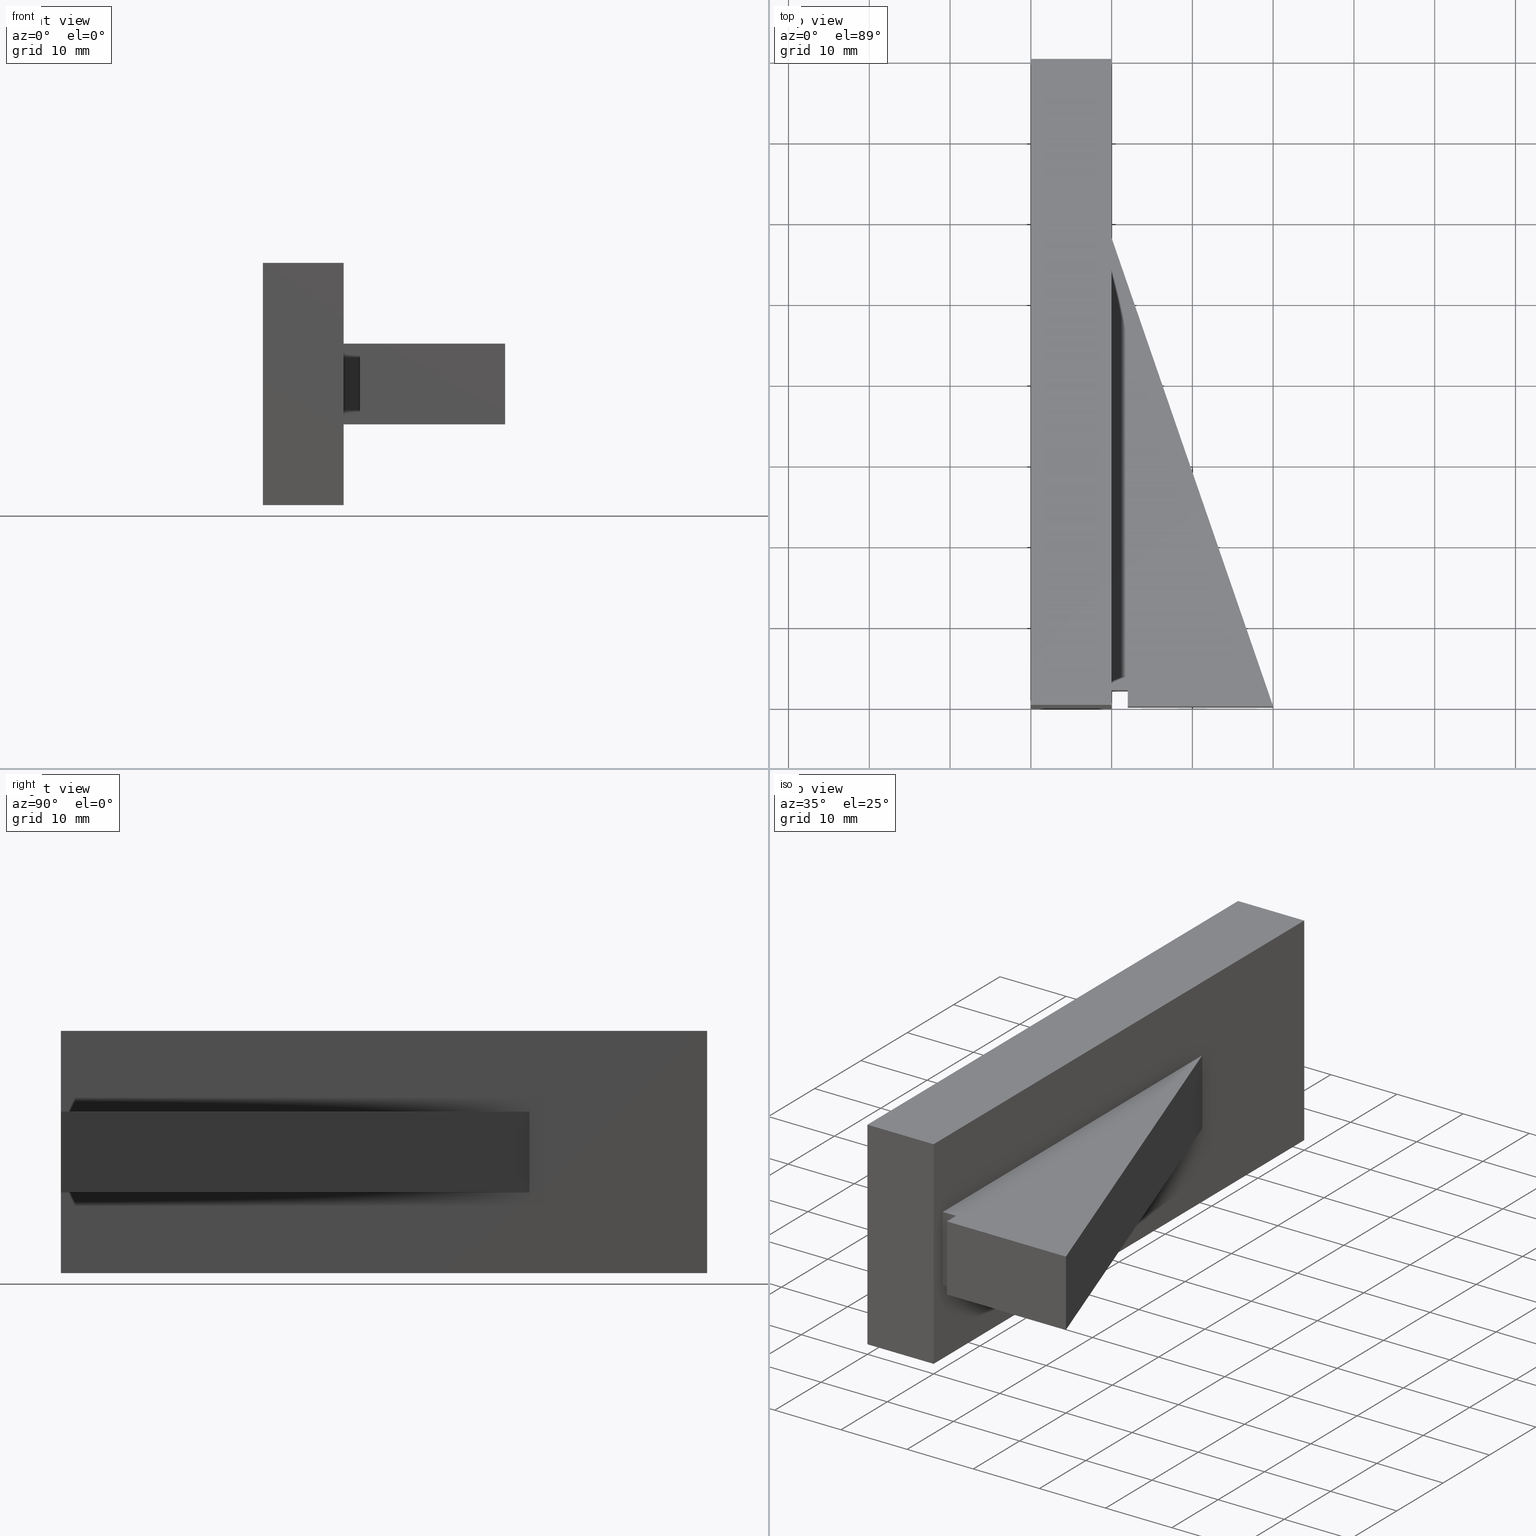
[diagram: canonical four-view strip — front | top / right | iso, engineering-drawing reading convention]
A machine part, canonical four-view strip (front | top / right | iso — engineering-drawing reading convention). The complete STEP part file that produces these views, byte-faithful:
ISO-10303-21;
HEADER;
/* Generated by software containing ST-Developer
 * from STEP Tools, Inc. (www.steptools.com) 
 */

FILE_DESCRIPTION(
/* description */ (''),
/* implementation_level */ '2;1');

FILE_NAME(
/* name */ 'E_3_01_06_08_00_WKZ-0148.stp',
/* time_stamp */ '2025-11-24T11:57:29+01:00',
/* author */ ('d.fischer'),
/* organization */ (''),
/* preprocessor_version */ 'ST-DEVELOPER v20',
/* originating_system */ 'Autodesk Inventor 2025',
/* authorisation */ '');

FILE_SCHEMA (('AUTOMOTIVE_DESIGN { 1 0 10303 214 3 1 1 }'));
ENDSEC;

DATA;
#10=MECHANICAL_DESIGN_GEOMETRIC_PRESENTATION_REPRESENTATION('',(#14,#15),
#368);
#11=SHAPE_REPRESENTATION_RELATIONSHIP('SRR','None',#375,#12);
#12=ADVANCED_BREP_SHAPE_REPRESENTATION('',(#13),#367);
#13=MANIFOLD_SOLID_BREP('Volumenk\X\F6rper1',#219);
#14=STYLED_ITEM('',(#385),#211);
#15=STYLED_ITEM('',(#384),#13);
#16=FACE_BOUND('',#30,.T.);
#17=FACE_OUTER_BOUND('',#29,.T.);
#18=FACE_OUTER_BOUND('',#31,.T.);
#19=FACE_OUTER_BOUND('',#32,.T.);
#20=FACE_OUTER_BOUND('',#33,.T.);
#21=FACE_OUTER_BOUND('',#34,.T.);
#22=FACE_OUTER_BOUND('',#35,.T.);
#23=FACE_OUTER_BOUND('',#36,.T.);
#24=FACE_OUTER_BOUND('',#37,.T.);
#25=FACE_OUTER_BOUND('',#38,.T.);
#26=FACE_OUTER_BOUND('',#39,.T.);
#27=FACE_OUTER_BOUND('',#40,.T.);
#28=FACE_OUTER_BOUND('',#41,.T.);
#29=EDGE_LOOP('',(#141,#142,#143,#144));
#30=EDGE_LOOP('',(#145,#146,#147,#148));
#31=EDGE_LOOP('',(#149,#150,#151,#152));
#32=EDGE_LOOP('',(#153,#154,#155,#156));
#33=EDGE_LOOP('',(#157,#158,#159,#160));
#34=EDGE_LOOP('',(#161,#162,#163,#164));
#35=EDGE_LOOP('',(#165,#166,#167,#168));
#36=EDGE_LOOP('',(#169,#170,#171,#172,#173));
#37=EDGE_LOOP('',(#174,#175,#176,#177));
#38=EDGE_LOOP('',(#178,#179,#180,#181));
#39=EDGE_LOOP('',(#182,#183,#184,#185));
#40=EDGE_LOOP('',(#186,#187,#188,#189));
#41=EDGE_LOOP('',(#190,#191,#192,#193,#194));
#42=LINE('',#311,#69);
#43=LINE('',#313,#70);
#44=LINE('',#315,#71);
#45=LINE('',#316,#72);
#46=LINE('',#319,#73);
#47=LINE('',#321,#74);
#48=LINE('',#323,#75);
#49=LINE('',#324,#76);
#50=LINE('',#328,#77);
#51=LINE('',#329,#78);
#52=LINE('',#330,#79);
#53=LINE('',#333,#80);
#54=LINE('',#334,#81);
#55=LINE('',#337,#82);
#56=LINE('',#338,#83);
#57=LINE('',#340,#84);
#58=LINE('',#344,#85);
#59=LINE('',#346,#86);
#60=LINE('',#348,#87);
#61=LINE('',#349,#88);
#62=LINE('',#353,#89);
#63=LINE('',#354,#90);
#64=LINE('',#355,#91);
#65=LINE('',#357,#92);
#66=LINE('',#360,#93);
#67=LINE('',#361,#94);
#68=LINE('',#363,#95);
#69=VECTOR('',#258,10.);
#70=VECTOR('',#259,10.);
#71=VECTOR('',#260,10.);
#72=VECTOR('',#261,10.);
#73=VECTOR('',#262,10.);
#74=VECTOR('',#263,10.);
#75=VECTOR('',#264,10.);
#76=VECTOR('',#265,10.);
#77=VECTOR('',#268,10.);
#78=VECTOR('',#269,10.);
#79=VECTOR('',#270,10.);
#80=VECTOR('',#273,10.);
#81=VECTOR('',#274,10.);
#82=VECTOR('',#277,10.);
#83=VECTOR('',#278,10.);
#84=VECTOR('',#281,10.);
#85=VECTOR('',#286,10.);
#86=VECTOR('',#287,10.);
#87=VECTOR('',#288,10.);
#88=VECTOR('',#289,10.);
#89=VECTOR('',#292,10.);
#90=VECTOR('',#293,10.);
#91=VECTOR('',#294,10.);
#92=VECTOR('',#297,10.);
#93=VECTOR('',#300,10.);
#94=VECTOR('',#301,10.);
#95=VECTOR('',#304,10.);
#96=VERTEX_POINT('',#309);
#97=VERTEX_POINT('',#310);
#98=VERTEX_POINT('',#312);
#99=VERTEX_POINT('',#314);
#100=VERTEX_POINT('',#317);
#101=VERTEX_POINT('',#318);
#102=VERTEX_POINT('',#320);
#103=VERTEX_POINT('',#322);
#104=VERTEX_POINT('',#326);
#105=VERTEX_POINT('',#327);
#106=VERTEX_POINT('',#332);
#107=VERTEX_POINT('',#336);
#108=VERTEX_POINT('',#343);
#109=VERTEX_POINT('',#345);
#110=VERTEX_POINT('',#347);
#111=VERTEX_POINT('',#351);
#112=VERTEX_POINT('',#352);
#113=VERTEX_POINT('',#359);
#114=EDGE_CURVE('',#96,#97,#42,.T.);
#115=EDGE_CURVE('',#98,#96,#43,.T.);
#116=EDGE_CURVE('',#99,#98,#44,.T.);
#117=EDGE_CURVE('',#97,#99,#45,.T.);
#118=EDGE_CURVE('',#100,#101,#46,.T.);
#119=EDGE_CURVE('',#102,#101,#47,.T.);
#120=EDGE_CURVE('',#102,#103,#48,.T.);
#121=EDGE_CURVE('',#103,#100,#49,.T.);
#122=EDGE_CURVE('',#104,#105,#50,.T.);
#123=EDGE_CURVE('',#98,#105,#51,.T.);
#124=EDGE_CURVE('',#96,#104,#52,.T.);
#125=EDGE_CURVE('',#105,#106,#53,.T.);
#126=EDGE_CURVE('',#99,#106,#54,.T.);
#127=EDGE_CURVE('',#106,#107,#55,.T.);
#128=EDGE_CURVE('',#97,#107,#56,.T.);
#129=EDGE_CURVE('',#107,#104,#57,.T.);
#130=EDGE_CURVE('',#108,#100,#58,.T.);
#131=EDGE_CURVE('',#109,#108,#59,.T.);
#132=EDGE_CURVE('',#110,#109,#60,.T.);
#133=EDGE_CURVE('',#101,#110,#61,.T.);
#134=EDGE_CURVE('',#111,#112,#62,.T.);
#135=EDGE_CURVE('',#112,#110,#63,.T.);
#136=EDGE_CURVE('',#111,#109,#64,.T.);
#137=EDGE_CURVE('',#112,#102,#65,.T.);
#138=EDGE_CURVE('',#103,#113,#66,.T.);
#139=EDGE_CURVE('',#108,#113,#67,.T.);
#140=EDGE_CURVE('',#113,#111,#68,.T.);
#141=ORIENTED_EDGE('',*,*,#114,.F.);
#142=ORIENTED_EDGE('',*,*,#115,.F.);
#143=ORIENTED_EDGE('',*,*,#116,.F.);
#144=ORIENTED_EDGE('',*,*,#117,.F.);
#145=ORIENTED_EDGE('',*,*,#118,.T.);
#146=ORIENTED_EDGE('',*,*,#119,.F.);
#147=ORIENTED_EDGE('',*,*,#120,.T.);
#148=ORIENTED_EDGE('',*,*,#121,.T.);
#149=ORIENTED_EDGE('',*,*,#122,.T.);
#150=ORIENTED_EDGE('',*,*,#123,.F.);
#151=ORIENTED_EDGE('',*,*,#115,.T.);
#152=ORIENTED_EDGE('',*,*,#124,.T.);
#153=ORIENTED_EDGE('',*,*,#125,.T.);
#154=ORIENTED_EDGE('',*,*,#126,.F.);
#155=ORIENTED_EDGE('',*,*,#116,.T.);
#156=ORIENTED_EDGE('',*,*,#123,.T.);
#157=ORIENTED_EDGE('',*,*,#127,.T.);
#158=ORIENTED_EDGE('',*,*,#128,.F.);
#159=ORIENTED_EDGE('',*,*,#117,.T.);
#160=ORIENTED_EDGE('',*,*,#126,.T.);
#161=ORIENTED_EDGE('',*,*,#129,.T.);
#162=ORIENTED_EDGE('',*,*,#124,.F.);
#163=ORIENTED_EDGE('',*,*,#114,.T.);
#164=ORIENTED_EDGE('',*,*,#128,.T.);
#165=ORIENTED_EDGE('',*,*,#122,.F.);
#166=ORIENTED_EDGE('',*,*,#129,.F.);
#167=ORIENTED_EDGE('',*,*,#127,.F.);
#168=ORIENTED_EDGE('',*,*,#125,.F.);
#169=ORIENTED_EDGE('',*,*,#130,.F.);
#170=ORIENTED_EDGE('',*,*,#131,.F.);
#171=ORIENTED_EDGE('',*,*,#132,.F.);
#172=ORIENTED_EDGE('',*,*,#133,.F.);
#173=ORIENTED_EDGE('',*,*,#118,.F.);
#174=ORIENTED_EDGE('',*,*,#134,.T.);
#175=ORIENTED_EDGE('',*,*,#135,.T.);
#176=ORIENTED_EDGE('',*,*,#132,.T.);
#177=ORIENTED_EDGE('',*,*,#136,.F.);
#178=ORIENTED_EDGE('',*,*,#137,.T.);
#179=ORIENTED_EDGE('',*,*,#119,.T.);
#180=ORIENTED_EDGE('',*,*,#133,.T.);
#181=ORIENTED_EDGE('',*,*,#135,.F.);
#182=ORIENTED_EDGE('',*,*,#138,.T.);
#183=ORIENTED_EDGE('',*,*,#139,.F.);
#184=ORIENTED_EDGE('',*,*,#130,.T.);
#185=ORIENTED_EDGE('',*,*,#121,.F.);
#186=ORIENTED_EDGE('',*,*,#140,.T.);
#187=ORIENTED_EDGE('',*,*,#136,.T.);
#188=ORIENTED_EDGE('',*,*,#131,.T.);
#189=ORIENTED_EDGE('',*,*,#139,.T.);
#190=ORIENTED_EDGE('',*,*,#134,.F.);
#191=ORIENTED_EDGE('',*,*,#140,.F.);
#192=ORIENTED_EDGE('',*,*,#138,.F.);
#193=ORIENTED_EDGE('',*,*,#120,.F.);
#194=ORIENTED_EDGE('',*,*,#137,.F.);
#195=PLANE('',#242);
#196=PLANE('',#243);
#197=PLANE('',#244);
#198=PLANE('',#245);
#199=PLANE('',#246);
#200=PLANE('',#247);
#201=PLANE('',#248);
#202=PLANE('',#249);
#203=PLANE('',#250);
#204=PLANE('',#251);
#205=PLANE('',#252);
#206=PLANE('',#253);
#207=ADVANCED_FACE('',(#17,#16),#195,.T.);
#208=ADVANCED_FACE('',(#18),#196,.T.);
#209=ADVANCED_FACE('',(#19),#197,.T.);
#210=ADVANCED_FACE('',(#20),#198,.T.);
#211=ADVANCED_FACE('',(#21),#199,.T.);
#212=ADVANCED_FACE('',(#22),#200,.F.);
#213=ADVANCED_FACE('',(#23),#201,.F.);
#214=ADVANCED_FACE('',(#24),#202,.T.);
#215=ADVANCED_FACE('',(#25),#203,.T.);
#216=ADVANCED_FACE('',(#26),#204,.T.);
#217=ADVANCED_FACE('',(#27),#205,.T.);
#218=ADVANCED_FACE('',(#28),#206,.T.);
#219=CLOSED_SHELL('',(#207,#208,#209,#210,#211,#212,#213,#214,#215,#216,
#217,#218));
#220=DERIVED_UNIT_ELEMENT(#223,1.);
#221=DERIVED_UNIT_ELEMENT(#370,-3.);
#222=DIMENSIONAL_EXPONENTS(0.,1.,0.,0.,0.,0.,0.);
#223=(
CONVERSION_BASED_UNIT('gram',#225)
MASS_UNIT()
NAMED_UNIT(#222)
);
#224=(
MASS_UNIT()
NAMED_UNIT(*)
SI_UNIT(.KILO.,.GRAM.)
);
#225=MASS_MEASURE_WITH_UNIT(MASS_MEASURE(0.001),#224);
#226=DERIVED_UNIT((#220,#221));
#227=MEASURE_REPRESENTATION_ITEM('density measure',
POSITIVE_RATIO_MEASURE(8.03),#226);
#228=PROPERTY_DEFINITION_REPRESENTATION(#233,#230);
#229=PROPERTY_DEFINITION_REPRESENTATION(#234,#231);
#230=REPRESENTATION('material name',(#232),#367);
#231=REPRESENTATION('density',(#227),#367);
#232=DESCRIPTIVE_REPRESENTATION_ITEM('1.4301','1.4301');
#233=PROPERTY_DEFINITION('material property','material name',#377);
#234=PROPERTY_DEFINITION('material property','density of part',#377);
#235=DATE_TIME_ROLE('creation_date');
#236=APPLIED_DATE_AND_TIME_ASSIGNMENT(#237,#235,(#377));
#237=DATE_AND_TIME(#238,#239);
#238=CALENDAR_DATE(2011,18,10);
#239=LOCAL_TIME(0,0,0.,#240);
#240=COORDINATED_UNIVERSAL_TIME_OFFSET(0,0,.BEHIND.);
#241=AXIS2_PLACEMENT_3D('',#307,#254,#255);
#242=AXIS2_PLACEMENT_3D('',#308,#256,#257);
#243=AXIS2_PLACEMENT_3D('',#325,#266,#267);
#244=AXIS2_PLACEMENT_3D('',#331,#271,#272);
#245=AXIS2_PLACEMENT_3D('',#335,#275,#276);
#246=AXIS2_PLACEMENT_3D('',#339,#279,#280);
#247=AXIS2_PLACEMENT_3D('',#341,#282,#283);
#248=AXIS2_PLACEMENT_3D('',#342,#284,#285);
#249=AXIS2_PLACEMENT_3D('',#350,#290,#291);
#250=AXIS2_PLACEMENT_3D('',#356,#295,#296);
#251=AXIS2_PLACEMENT_3D('',#358,#298,#299);
#252=AXIS2_PLACEMENT_3D('',#362,#302,#303);
#253=AXIS2_PLACEMENT_3D('',#364,#305,#306);
#254=DIRECTION('axis',(0.,0.,1.));
#255=DIRECTION('refdir',(1.,0.,0.));
#256=DIRECTION('center_axis',(1.,2.48971655895418E-16,-1.10469952699022E-17));
#257=DIRECTION('ref_axis',(-1.10469952699022E-17,0.,-1.));
#258=DIRECTION('',(0.,0.,1.));
#259=DIRECTION('',(2.37904933848248E-16,-1.,2.77555756156289E-16));
#260=DIRECTION('',(1.40868018789466E-31,-5.9211894646675E-16,-1.));
#261=DIRECTION('',(-2.37904933848248E-16,1.,2.77555756156289E-16));
#262=DIRECTION('',(2.37904933848248E-16,-1.,0.));
#263=DIRECTION('',(0.,0.,-1.));
#264=DIRECTION('',(-2.37904933848248E-16,1.,0.));
#265=DIRECTION('',(0.,0.,-1.));
#266=DIRECTION('center_axis',(6.60318838075624E-32,-2.77555756156289E-16,
-1.));
#267=DIRECTION('ref_axis',(-1.,0.,-6.60318838075624E-32));
#268=DIRECTION('',(-2.37904933848248E-16,1.,-2.77555756156289E-16));
#269=DIRECTION('',(-1.,-2.37904933848248E-16,0.));
#270=DIRECTION('',(-1.,-2.37904933848248E-16,0.));
#271=DIRECTION('center_axis',(-2.37904933848248E-16,1.,-5.9211894646675E-16));
#272=DIRECTION('ref_axis',(0.,5.9211894646675E-16,1.));
#273=DIRECTION('',(-1.40868018789466E-31,5.9211894646675E-16,1.));
#274=DIRECTION('',(-1.,-2.37904933848248E-16,0.));
#275=DIRECTION('center_axis',(6.60318838075624E-32,-2.77555756156289E-16,
1.));
#276=DIRECTION('ref_axis',(1.,0.,-6.60318838075624E-32));
#277=DIRECTION('',(2.37904933848248E-16,-1.,-2.77555756156289E-16));
#278=DIRECTION('',(-1.,-2.37904933848248E-16,0.));
#279=DIRECTION('center_axis',(2.37904933848248E-16,-1.,0.));
#280=DIRECTION('ref_axis',(0.,0.,-1.));
#281=DIRECTION('',(0.,0.,-1.));
#282=DIRECTION('center_axis',(1.,2.48971655895418E-16,-1.10469952699022E-17));
#283=DIRECTION('ref_axis',(-1.10469952699022E-17,0.,-1.));
#284=DIRECTION('center_axis',(0.,0.,1.));
#285=DIRECTION('ref_axis',(1.,0.,0.));
#286=DIRECTION('',(-0.325990683319404,0.945372981626272,0.));
#287=DIRECTION('',(1.,3.46944695195361E-17,0.));
#288=DIRECTION('',(-1.11022302462516E-15,-1.,0.));
#289=DIRECTION('',(1.,2.77555756156289E-16,0.));
#290=DIRECTION('center_axis',(-1.,1.11022302462516E-15,0.));
#291=DIRECTION('ref_axis',(0.,0.,1.));
#292=DIRECTION('',(1.11022302462516E-15,1.,0.));
#293=DIRECTION('',(0.,0.,-1.));
#294=DIRECTION('',(0.,0.,-1.));
#295=DIRECTION('center_axis',(2.77555756156289E-16,-1.,0.));
#296=DIRECTION('ref_axis',(0.,0.,-1.));
#297=DIRECTION('',(-1.,-2.77555756156289E-16,0.));
#298=DIRECTION('center_axis',(0.945372981626272,0.325990683319404,0.));
#299=DIRECTION('ref_axis',(0.,0.,-1.));
#300=DIRECTION('',(0.325990683319404,-0.945372981626272,0.));
#301=DIRECTION('',(0.,0.,1.));
#302=DIRECTION('center_axis',(3.46944695195361E-17,-1.,0.));
#303=DIRECTION('ref_axis',(0.,0.,-1.));
#304=DIRECTION('',(-1.,-3.46944695195361E-17,0.));
#305=DIRECTION('center_axis',(0.,0.,1.));
#306=DIRECTION('ref_axis',(1.,0.,0.));
#307=CARTESIAN_POINT('',(0.,0.,0.));
#308=CARTESIAN_POINT('Origin',(-20.,40.,2.22044604925031E-15));
#309=CARTESIAN_POINT('',(-20.,-2.77555756156289E-15,-15.));
#310=CARTESIAN_POINT('',(-20.,-2.77555756156289E-15,15.));
#311=CARTESIAN_POINT('',(-20.,-2.77555756156289E-15,-15.));
#312=CARTESIAN_POINT('',(-20.,80.,-15.));
#313=CARTESIAN_POINT('',(-20.,80.,-15.));
#314=CARTESIAN_POINT('',(-20.,80.,15.));
#315=CARTESIAN_POINT('',(-20.,80.,15.));
#316=CARTESIAN_POINT('',(-20.,-2.77555756156289E-15,15.));
#317=CARTESIAN_POINT('',(-20.,58.,-5.));
#318=CARTESIAN_POINT('',(-20.,2.,-5.));
#319=CARTESIAN_POINT('',(-20.,2.,-5.));
#320=CARTESIAN_POINT('',(-20.,2.,5.));
#321=CARTESIAN_POINT('',(-20.,2.,0.));
#322=CARTESIAN_POINT('',(-20.,58.,5.));
#323=CARTESIAN_POINT('',(-20.,2.,5.));
#324=CARTESIAN_POINT('',(-20.,58.,0.));
#325=CARTESIAN_POINT('Origin',(-20.,-2.77555756156289E-15,-15.));
#326=CARTESIAN_POINT('',(-30.,-5.15460690004537E-15,-15.));
#327=CARTESIAN_POINT('',(-30.,80.,-15.));
#328=CARTESIAN_POINT('',(-30.,80.,-15.));
#329=CARTESIAN_POINT('',(-20.,80.,-15.));
#330=CARTESIAN_POINT('',(-20.,-2.77555756156289E-15,-15.));
#331=CARTESIAN_POINT('Origin',(-20.,80.,-15.));
#332=CARTESIAN_POINT('',(-30.,80.,15.));
#333=CARTESIAN_POINT('',(-30.,80.,15.));
#334=CARTESIAN_POINT('',(-20.,80.,15.));
#335=CARTESIAN_POINT('Origin',(-20.,80.,15.));
#336=CARTESIAN_POINT('',(-30.,-5.15460690004537E-15,15.));
#337=CARTESIAN_POINT('',(-30.,-5.15460690004537E-15,15.));
#338=CARTESIAN_POINT('',(-20.,-2.77555756156289E-15,15.));
#339=CARTESIAN_POINT('Origin',(-20.,-2.77555756156289E-15,15.));
#340=CARTESIAN_POINT('',(-30.,-5.15460690004537E-15,-15.));
#341=CARTESIAN_POINT('Origin',(-30.,40.,2.22044604925031E-15));
#342=CARTESIAN_POINT('Origin',(-14.1334339474095,24.8665660525905,-5.));
#343=CARTESIAN_POINT('',(0.,0.,-5.));
#344=CARTESIAN_POINT('',(-20.,58.,-5.));
#345=CARTESIAN_POINT('',(-18.,-6.24500451351651E-16,-5.));
#346=CARTESIAN_POINT('',(0.,0.,-5.));
#347=CARTESIAN_POINT('',(-18.,2.,-5.));
#348=CARTESIAN_POINT('',(-18.,-5.55111512312578E-16,-5.));
#349=CARTESIAN_POINT('',(-18.,2.,-5.));
#350=CARTESIAN_POINT('Origin',(-18.,-6.24500451351651E-16,0.));
#351=CARTESIAN_POINT('',(-18.,-6.24500451351651E-16,5.));
#352=CARTESIAN_POINT('',(-18.,2.,5.));
#353=CARTESIAN_POINT('',(-18.,-5.55111512312578E-16,5.));
#354=CARTESIAN_POINT('',(-18.,2.,0.));
#355=CARTESIAN_POINT('',(-18.,-6.24500451351651E-16,0.));
#356=CARTESIAN_POINT('Origin',(-18.,2.,0.));
#357=CARTESIAN_POINT('',(-18.,2.,5.));
#358=CARTESIAN_POINT('Origin',(-20.,58.,0.));
#359=CARTESIAN_POINT('',(0.,0.,5.));
#360=CARTESIAN_POINT('',(-20.,58.,5.));
#361=CARTESIAN_POINT('',(0.,0.,0.));
#362=CARTESIAN_POINT('Origin',(0.,0.,0.));
#363=CARTESIAN_POINT('',(0.,0.,5.));
#364=CARTESIAN_POINT('Origin',(-14.1334339474095,24.8665660525905,5.));
#365=UNCERTAINTY_MEASURE_WITH_UNIT(LENGTH_MEASURE(0.01),#369,
'DISTANCE_ACCURACY_VALUE',
'Maximum model space distance between geometric entities at asserted c
onnectivities');
#366=UNCERTAINTY_MEASURE_WITH_UNIT(LENGTH_MEASURE(0.01),#369,
'DISTANCE_ACCURACY_VALUE',
'Maximum model space distance between geometric entities at asserted c
onnectivities');
#367=(
GEOMETRIC_REPRESENTATION_CONTEXT(3)
GLOBAL_UNCERTAINTY_ASSIGNED_CONTEXT((#365))
GLOBAL_UNIT_ASSIGNED_CONTEXT((#369,#371,#372))
REPRESENTATION_CONTEXT('','3D')
);
#368=(
GEOMETRIC_REPRESENTATION_CONTEXT(3)
GLOBAL_UNCERTAINTY_ASSIGNED_CONTEXT((#366))
GLOBAL_UNIT_ASSIGNED_CONTEXT((#369,#371,#372))
REPRESENTATION_CONTEXT('','3D')
);
#369=(
LENGTH_UNIT()
NAMED_UNIT(*)
SI_UNIT(.MILLI.,.METRE.)
);
#370=(
LENGTH_UNIT()
NAMED_UNIT(*)
SI_UNIT(.CENTI.,.METRE.)
);
#371=(
NAMED_UNIT(*)
PLANE_ANGLE_UNIT()
SI_UNIT($,.RADIAN.)
);
#372=(
NAMED_UNIT(*)
SI_UNIT($,.STERADIAN.)
SOLID_ANGLE_UNIT()
);
#373=SHAPE_DEFINITION_REPRESENTATION(#374,#375);
#374=PRODUCT_DEFINITION_SHAPE('',$,#377);
#375=SHAPE_REPRESENTATION('',(#241),#367);
#376=PRODUCT_DEFINITION_CONTEXT('part definition',#381,'design');
#377=PRODUCT_DEFINITION('WKZ-0148','E_3_01_06_08_00_WKZ-0148',#378,#376);
#378=PRODUCT_DEFINITION_FORMATION('',$,#383);
#379=PRODUCT_RELATED_PRODUCT_CATEGORY('E_3_01_06_08_00_WKZ-0148',
'E_3_01_06_08_00_WKZ-0148',(#383));
#380=APPLICATION_PROTOCOL_DEFINITION('international standard',
'automotive_design',2009,#381);
#381=APPLICATION_CONTEXT(
'Core Data for Automotive Mechanical Design Process');
#382=PRODUCT_CONTEXT('part definition',#381,'mechanical');
#383=PRODUCT('WKZ-0148','E_3_01_06_08_00_WKZ-0148',$,(#382));
#384=PRESENTATION_STYLE_ASSIGNMENT((#386));
#385=PRESENTATION_STYLE_ASSIGNMENT((#387));
#386=SURFACE_STYLE_USAGE(.BOTH.,#390);
#387=SURFACE_STYLE_USAGE(.BOTH.,#391);
#388=SURFACE_STYLE_RENDERING_WITH_PROPERTIES($,#398,(#389));
#389=SURFACE_STYLE_TRANSPARENT(0.);
#390=SURFACE_SIDE_STYLE('',(#392,#388));
#391=SURFACE_SIDE_STYLE('',(#393));
#392=SURFACE_STYLE_FILL_AREA(#394);
#393=SURFACE_STYLE_FILL_AREA(#395);
#394=FILL_AREA_STYLE('',(#396));
#395=FILL_AREA_STYLE('',(#397));
#396=FILL_AREA_STYLE_COLOUR('',#398);
#397=FILL_AREA_STYLE_COLOUR('',#399);
#398=COLOUR_RGB('',1.,1.,1.);
#399=COLOUR_RGB('',0.325490196078431,0.325490196078431,0.325490196078431);
ENDSEC;
END-ISO-10303-21;
